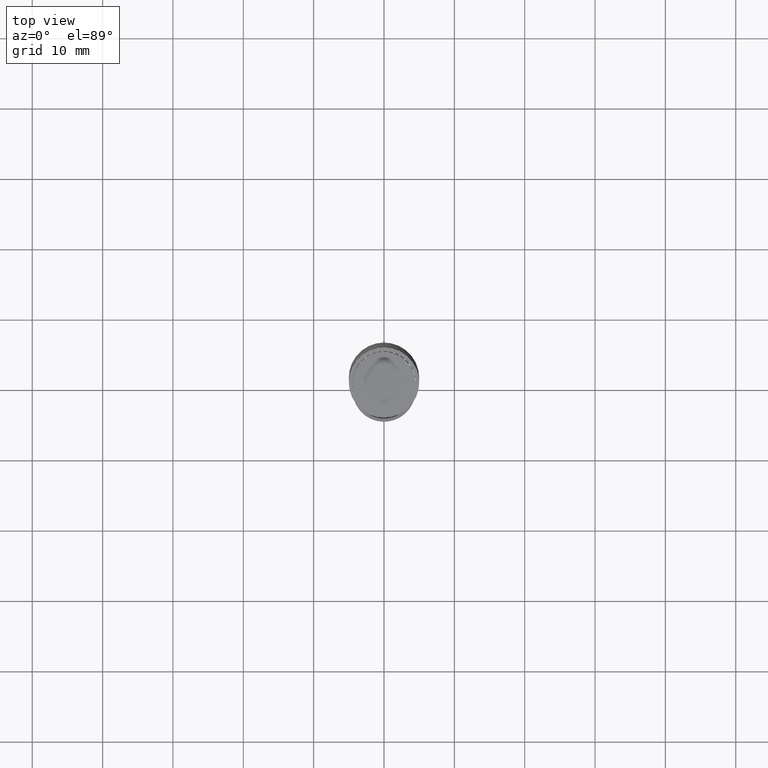
[diagram: clean part render]
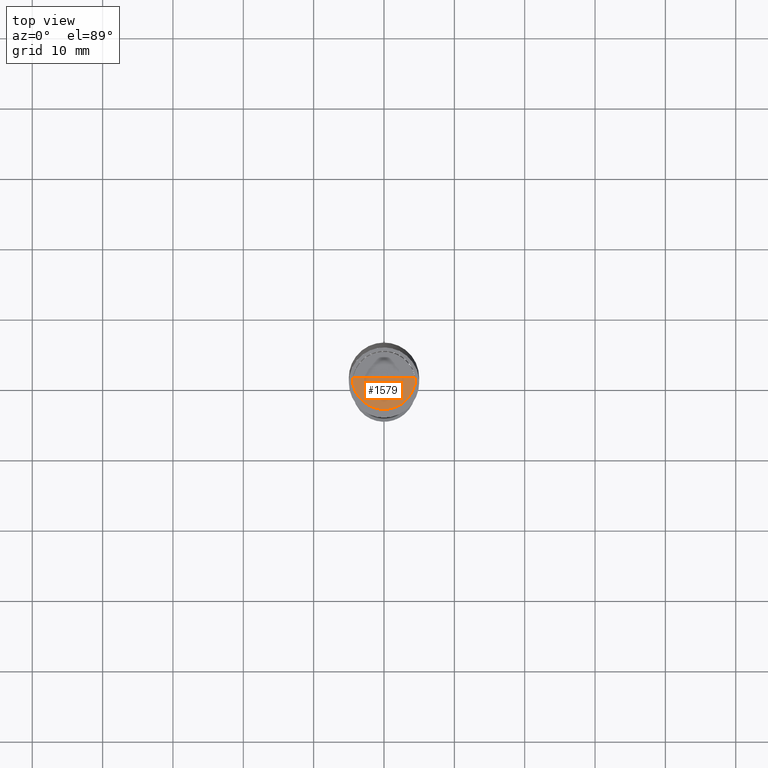
[diagram: same view with one face highlighted and labeled with its STEP entity id]
A machine part, top view. The second image highlights one B-rep face of the part: STEP entity #1579.
In plain terms, the highlighted face is a freeform B-spline surface patch.
Its self-contained STEP definition (entity closure, byte-faithful):
#1182=CARTESIAN_POINT('',(4.5,0.0,40.0));
#1186=CARTESIAN_POINT('',(-4.5,0.0,40.0));
#1187=CARTESIAN_POINT('',(0.0,0.0,40.0));
#1200=CARTESIAN_POINT('',(-4.5,-4.5,40.0));
#1201=CARTESIAN_POINT('',(0.0,-4.5,40.0));
#1202=CARTESIAN_POINT('',(4.5,-4.5,40.0));
#1564=(
BOUNDED_SURFACE()
B_SPLINE_SURFACE(1,2,(
(#1186,#1200,#1201,#1202,#1182),
(#1187,#1187,#1187,#1187,#1187)
), .UNSPECIFIED.,.F.,.F.,.F.)
B_SPLINE_SURFACE_WITH_KNOTS((2,2),(3,2,3),(
0.0,1.0),(
0.0,0.5,1.0), .UNSPECIFIED.)
GEOMETRIC_REPRESENTATION_ITEM()
RATIONAL_B_SPLINE_SURFACE(((1.0,0.707106781187,1.0,0.707106781187,1.0),
(1.0,0.707106781187,1.0,0.707106781187,1.0)
))
REPRESENTATION_ITEM('')
SURFACE()
);
#1565=(
BOUNDED_CURVE()
B_SPLINE_CURVE(2,(#1182,#1202,#1201,#1200,#1186),.UNSPECIFIED.,.F.,.F.)
B_SPLINE_CURVE_WITH_KNOTS((3,2,3),
(0.0,0.5,1.0),.UNSPECIFIED.)
CURVE()
GEOMETRIC_REPRESENTATION_ITEM()
RATIONAL_B_SPLINE_CURVE((1.0,0.707106781187,1.0,0.707106781187,1.0))
REPRESENTATION_ITEM('')
);
#1566=(
BOUNDED_CURVE()
B_SPLINE_CURVE(1,(#1186,#1187),.UNSPECIFIED.,.F.,.F.)
B_SPLINE_CURVE_WITH_KNOTS((2,2),
(0.0,1.0),.UNSPECIFIED.)
CURVE()
GEOMETRIC_REPRESENTATION_ITEM()
RATIONAL_B_SPLINE_CURVE((1.0,1.0))
REPRESENTATION_ITEM('')
);
#1567=(
BOUNDED_CURVE()
B_SPLINE_CURVE(1,(#1187,#1182),.UNSPECIFIED.,.F.,.F.)
B_SPLINE_CURVE_WITH_KNOTS((2,2),
(0.0,1.0),.UNSPECIFIED.)
CURVE()
GEOMETRIC_REPRESENTATION_ITEM()
RATIONAL_B_SPLINE_CURVE((1.0,1.0))
REPRESENTATION_ITEM('')
);
#1568=VERTEX_POINT('',#1182);
#1569=VERTEX_POINT('',#1186);
#1570=VERTEX_POINT('',#1187);
#1571=EDGE_CURVE('',#1568,#1569,#1565,.T.);
#1572=EDGE_CURVE('',#1569,#1570,#1566,.T.);
#1573=EDGE_CURVE('',#1570,#1568,#1567,.T.);
#1574=ORIENTED_EDGE('',*,*,#1571,.T.);
#1575=ORIENTED_EDGE('',*,*,#1572,.T.);
#1576=ORIENTED_EDGE('',*,*,#1573,.T.);
#1577=EDGE_LOOP('',(#1574,#1575,#1576));
#1578=FACE_OUTER_BOUND('',#1577,.T.);
#1579=ADVANCED_FACE('',(#1578),#1564,.T.);